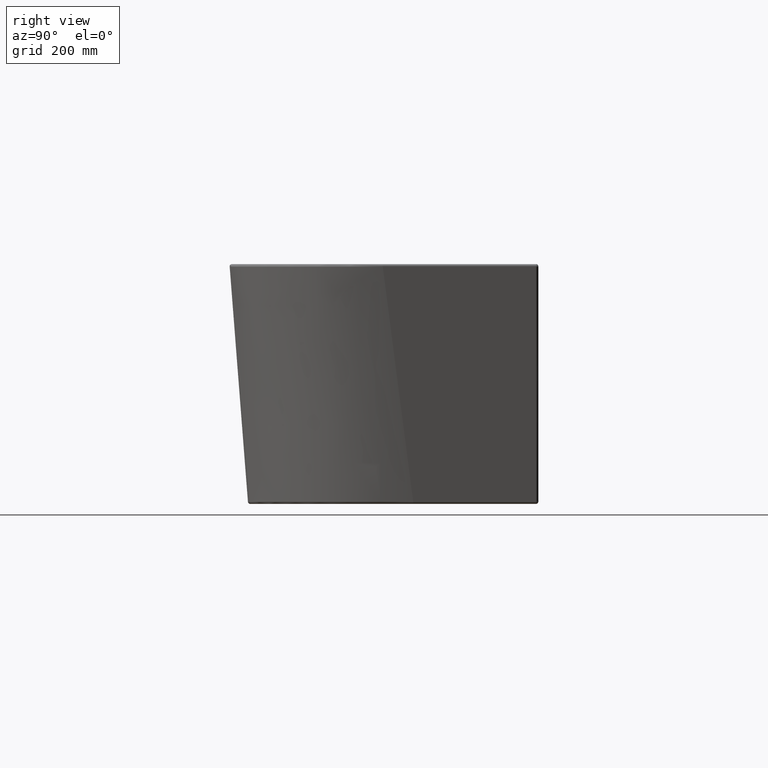
[diagram: clean part render]
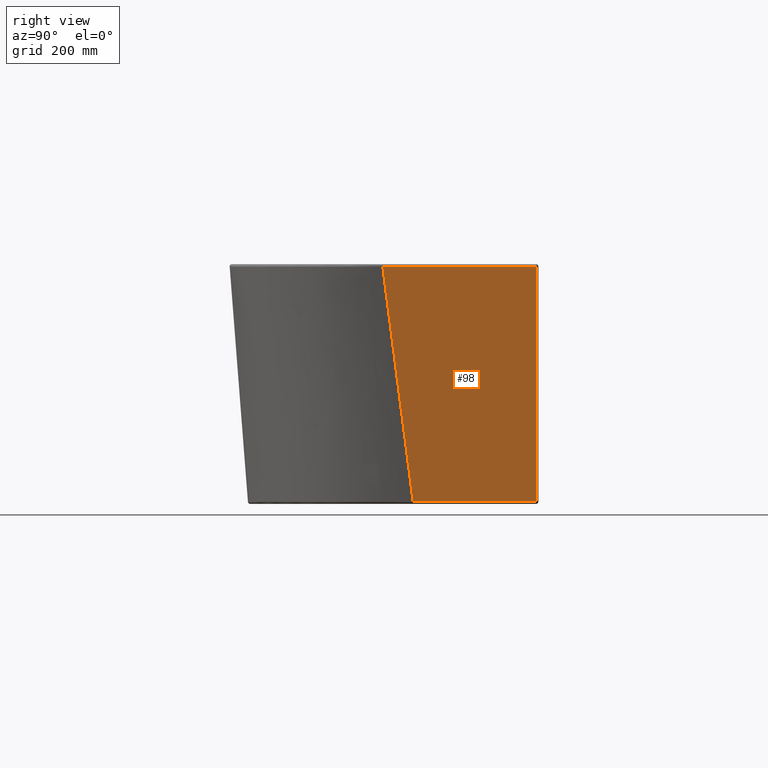
[diagram: same view with one face highlighted and labeled with its STEP entity id]
A machine part, right view. The second image highlights one B-rep face of the part: STEP entity #98.
In plain terms, the highlighted face is a freeform B-spline surface patch.
Its self-contained STEP definition (entity closure, byte-faithful):
#98=ADVANCED_FACE('',(#197),#2809,.T.);
#197=FACE_OUTER_BOUND('',#293,.T.);
#293=EDGE_LOOP('',(#490,#491,#492,#493));
#490=ORIENTED_EDGE('',*,*,#2388,.T.);
#491=ORIENTED_EDGE('',*,*,#2389,.T.);
#492=ORIENTED_EDGE('',*,*,#2390,.T.);
#493=ORIENTED_EDGE('',*,*,#2391,.T.);
#947=B_SPLINE_CURVE_WITH_KNOTS('',3,(#6392,#6393,#6394,#6395),
 .UNSPECIFIED.,.F.,.F.,(4,4),(5.65685424888513,376.22244191174),
 .UNSPECIFIED.);
#948=B_SPLINE_CURVE_WITH_KNOTS('',1,(#6400,#6401),.UNSPECIFIED.,.F.,.F.,
(2,2),(6.15764951056476,588.537685480666),.UNSPECIFIED.);
#949=B_SPLINE_CURVE_WITH_KNOTS('',3,(#6404,#6405,#6406,#6407),
 .UNSPECIFIED.,.F.,.F.,(4,4),(-302.682318105757,-5.65685424856235),
 .UNSPECIFIED.);
#950=B_SPLINE_CURVE_WITH_KNOTS('',3,(#6410,#6411,#6412,#6413),
 .UNSPECIFIED.,.F.,.F.,(4,4),(5.32170020143917,578.893599278641),
 .UNSPECIFIED.);
#1142=B_SPLINE_CURVE_WITH_KNOTS('',1,(#8822,#8823),.UNSPECIFIED.,.F.,.F.,
(2,2),(6.15764951056476,588.537685480666),.UNSPECIFIED.);
#1164=B_SPLINE_CURVE_WITH_KNOTS('',1,(#8962,#8963),.UNSPECIFIED.,.F.,.F.,
(2,2),(5.65685424888513,376.22244191174),.UNSPECIFIED.);
#1186=B_SPLINE_CURVE_WITH_KNOTS('',1,(#9057,#9058),.UNSPECIFIED.,.F.,.F.,
(2,2),(-302.682318105757,-5.65685424856235),.UNSPECIFIED.);
#1202=B_SPLINE_CURVE_WITH_KNOTS('',1,(#9119,#9120),.UNSPECIFIED.,.F.,.F.,
(2,2),(5.32170020143917,578.893599278641),.UNSPECIFIED.);
#1399=PCURVE('',#2809,#1818);
#1400=PCURVE('',#2809,#1819);
#1401=PCURVE('',#2809,#1820);
#1402=PCURVE('',#2809,#1821);
#1570=PCURVE('',#2842,#1989);
#1592=PCURVE('',#2847,#2011);
#1610=PCURVE('',#2852,#2029);
#1624=PCURVE('',#2855,#2043);
#1818=DEFINITIONAL_REPRESENTATION('',(#947),#9406);
#1819=DEFINITIONAL_REPRESENTATION('',(#948),#9406);
#1820=DEFINITIONAL_REPRESENTATION('',(#949),#9406);
#1821=DEFINITIONAL_REPRESENTATION('',(#950),#9406);
#1989=DEFINITIONAL_REPRESENTATION('',(#1142),#9406);
#2011=DEFINITIONAL_REPRESENTATION('',(#1164),#9406);
#2029=DEFINITIONAL_REPRESENTATION('',(#1186),#9406);
#2043=DEFINITIONAL_REPRESENTATION('',(#1202),#9406);
#2177=SURFACE_CURVE('',#2567,(#1399,#1592),.PCURVE_S1.);
#2178=SURFACE_CURVE('',#2568,(#1400,#1570),.PCURVE_S1.);
#2179=SURFACE_CURVE('',#2569,(#1401,#1610),.PCURVE_S1.);
#2180=SURFACE_CURVE('',#2570,(#1402,#1624),.PCURVE_S1.);
#2388=EDGE_CURVE('',#2778,#2777,#2177,.T.);
#2389=EDGE_CURVE('',#2777,#2774,#2178,.T.);
#2390=EDGE_CURVE('',#2774,#2779,#2179,.T.);
#2391=EDGE_CURVE('',#2779,#2778,#2180,.T.);
#2567=(
BOUNDED_CURVE()
B_SPLINE_CURVE(1,(#6390,#6391),.UNSPECIFIED.,.F.,.F.)
B_SPLINE_CURVE_WITH_KNOTS((2,2),(5.65685424888513,376.22244191174),
 .UNSPECIFIED.)
CURVE()
GEOMETRIC_REPRESENTATION_ITEM()
RATIONAL_B_SPLINE_CURVE((1.,1.))
REPRESENTATION_ITEM('')
);
#2568=(
BOUNDED_CURVE()
B_SPLINE_CURVE(3,(#6396,#6397,#6398,#6399),.UNSPECIFIED.,.F.,.F.)
B_SPLINE_CURVE_WITH_KNOTS((4,4),(6.15764951056476,588.537685480666),
 .UNSPECIFIED.)
CURVE()
GEOMETRIC_REPRESENTATION_ITEM()
RATIONAL_B_SPLINE_CURVE((1.,1.,1.,1.))
REPRESENTATION_ITEM('')
);
#2569=(
BOUNDED_CURVE()
B_SPLINE_CURVE(1,(#6402,#6403),.UNSPECIFIED.,.F.,.F.)
B_SPLINE_CURVE_WITH_KNOTS((2,2),(-302.682318105757,-5.65685424856235),
 .UNSPECIFIED.)
CURVE()
GEOMETRIC_REPRESENTATION_ITEM()
RATIONAL_B_SPLINE_CURVE((1.,1.))
REPRESENTATION_ITEM('')
);
#2570=(
BOUNDED_CURVE()
B_SPLINE_CURVE(1,(#6408,#6409),.UNSPECIFIED.,.F.,.F.)
B_SPLINE_CURVE_WITH_KNOTS((2,2),(5.32170020143917,578.893599278641),
 .UNSPECIFIED.)
CURVE()
GEOMETRIC_REPRESENTATION_ITEM()
RATIONAL_B_SPLINE_CURVE((1.,1.))
REPRESENTATION_ITEM('')
);
#2774=VERTEX_POINT('',#6286);
#2777=VERTEX_POINT('',#6289);
#2778=VERTEX_POINT('',#6290);
#2779=VERTEX_POINT('',#6291);
#2809=(
BOUNDED_SURFACE()
B_SPLINE_SURFACE(3,2,((#3878,#3879,#3880),(#3881,#3882,#3883),(#3884,#3885,
#3886),(#3887,#3888,#3889)),.UNSPECIFIED.,.F.,.F.,.F.)
B_SPLINE_SURFACE_WITH_KNOTS((4,4),(3,3),(0.,593.941109113743),(0.,377.),
 .UNSPECIFIED.)
GEOMETRIC_REPRESENTATION_ITEM()
RATIONAL_B_SPLINE_SURFACE(((1.,1.,1.),(1.,1.,1.),(1.,1.,1.),(1.,1.,1.)))
REPRESENTATION_ITEM('')
SURFACE()
);
#2842=(
BOUNDED_SURFACE()
B_SPLINE_SURFACE(3,2,((#5142,#5143,#5144),(#5145,#5146,#5147),(#5148,#5149,
#5150),(#5151,#5152,#5153)),.UNSPECIFIED.,.F.,.F.,.F.)
B_SPLINE_SURFACE_WITH_KNOTS((4,4),(3,3),(0.,593.941109113743),(3746.00915287992,
4327.20851813218),.UNSPECIFIED.)
GEOMETRIC_REPRESENTATION_ITEM()
RATIONAL_B_SPLINE_SURFACE(((1.,0.707106781186547,1.),(0.981357775966269,
0.717543593945994,1.),(0.962715551932538,0.727980406705441,1.),(0.944073327898807,
0.738417219464888,1.)))
REPRESENTATION_ITEM('')
SURFACE()
);
#2847=(
BOUNDED_SURFACE()
B_SPLINE_SURFACE(1,2,((#5202,#5203,#5204),(#5205,#5206,#5207)),
 .UNSPECIFIED.,.F.,.F.,.F.)
B_SPLINE_SURFACE_WITH_KNOTS((2,2),(3,3),(-160.000000000002,376.22244191174),
(0.,9.05268294168685),.UNSPECIFIED.)
GEOMETRIC_REPRESENTATION_ITEM()
RATIONAL_B_SPLINE_SURFACE(((1.,0.659574168863054,1.),(1.,0.659574168863064,
1.)))
REPRESENTATION_ITEM('')
SURFACE()
);
#2852=(
BOUNDED_SURFACE()
B_SPLINE_SURFACE(1,2,((#5232,#5233,#5234),(#5235,#5236,#5237)),
 .UNSPECIFIED.,.F.,.F.,.F.)
B_SPLINE_SURFACE_WITH_KNOTS((2,2),(3,3),(-160.000000000002,302.682318105757),
(0.,8.73596471937333),.UNSPECIFIED.)
GEOMETRIC_REPRESENTATION_ITEM()
RATIONAL_B_SPLINE_SURFACE(((1.,0.751639485237847,1.),(1.,0.751639485237847,
1.)))
REPRESENTATION_ITEM('')
SURFACE()
);
#2855=(
BOUNDED_SURFACE()
B_SPLINE_SURFACE(1,2,((#5277,#5278,#5279),(#5280,#5281,#5282)),
 .UNSPECIFIED.,.F.,.F.,.F.)
B_SPLINE_SURFACE_WITH_KNOTS((2,2),(3,3),(-160.000000000005,744.958118158898),
(0.,8.88576587842743),.UNSPECIFIED.)
GEOMETRIC_REPRESENTATION_ITEM()
RATIONAL_B_SPLINE_SURFACE(((1.,0.70710678105643,1.),(1.,0.707106781120093,
1.)))
REPRESENTATION_ITEM('')
SURFACE()
);
#3878=CARTESIAN_POINT('',(722.6080292697,-1148.07099180049,0.));
#3879=CARTESIAN_POINT('',(722.6080292697,-959.570991800494,0.));
#3880=CARTESIAN_POINT('',(722.6080292697,-771.070991800494,0.));
#3881=CARTESIAN_POINT('',(697.274695936366,-1123.07099180049,-193.333333333333));
#3882=CARTESIAN_POINT('',(697.274695936366,-947.070991800494,-193.333333333333));
#3883=CARTESIAN_POINT('',(697.274695936367,-771.070991800494,-193.333333333333));
#3884=CARTESIAN_POINT('',(671.941362603033,-1098.07099180049,-386.666666666667));
#3885=CARTESIAN_POINT('',(671.941362603033,-934.570991800494,-386.666666666667));
#3886=CARTESIAN_POINT('',(671.941362603033,-771.070991800494,-386.666666666667));
#3887=CARTESIAN_POINT('',(646.6080292697,-1073.07099180049,-580.));
#3888=CARTESIAN_POINT('',(646.6080292697,-922.070991800494,-580.));
#3889=CARTESIAN_POINT('',(646.6080292697,-771.070991800494,-580.));
#5142=CARTESIAN_POINT('',(352.6080292697,-1518.07099180049,0.));
#5143=CARTESIAN_POINT('',(722.6080292697,-1518.07099180049,0.));
#5144=CARTESIAN_POINT('',(722.6080292697,-1148.07099180049,0.));
#5145=CARTESIAN_POINT('',(338.514252622973,-1502.08824162991,-185.988074750878));
#5146=CARTESIAN_POINT('',(696.537739300412,-1482.77047267638,-198.957476081409));
#5147=CARTESIAN_POINT('',(697.274695936366,-1123.07099180049,-193.333333333333));
#5148=CARTESIAN_POINT('',(323.874646335909,-1485.48650486716,-379.179172970417));
#5149=CARTESIAN_POINT('',(671.214971469049,-1448.48213713583,-392.210177952338));
#5150=CARTESIAN_POINT('',(671.941362603033,-1098.07099180049,-386.666666666667));
#5151=CARTESIAN_POINT('',(308.656875594656,-1468.22911289854,-580.));
#5152=CARTESIAN_POINT('',(646.6080292697,-1415.16306647274,-580.));
#5153=CARTESIAN_POINT('',(646.6080292697,-1073.07099180049,-580.));
#5202=CARTESIAN_POINT('',(716.543510389443,-611.070991800491,0.));
#5203=CARTESIAN_POINT('',(722.6080292697,-611.070991800491,1.03351066384982E-13));
#5204=CARTESIAN_POINT('',(721.820103740347,-611.070991800492,-6.01311588190276));
#5205=CARTESIAN_POINT('',(716.543510389443,-1147.29343371223,0.));
#5206=CARTESIAN_POINT('',(722.6080292697,-1147.29343371224,-8.63147441299266E-14));
#5207=CARTESIAN_POINT('',(721.820103740347,-1147.29343371223,-6.01311588190275));
#5232=CARTESIAN_POINT('',(647.299444950164,-611.070991800492,-574.723406649096));
#5233=CARTESIAN_POINT('',(646.6080292697,-611.070991800492,-580.));
#5234=CARTESIAN_POINT('',(641.286329068261,-611.070991800492,-580.));
#5235=CARTESIAN_POINT('',(647.299444950163,-1073.75330990625,-574.723406649095));
#5236=CARTESIAN_POINT('',(646.6080292697,-1073.75330990625,-580.));
#5237=CARTESIAN_POINT('',(641.286329068261,-1073.75330990625,-580.));
#5277=CARTESIAN_POINT('',(620.211309596984,-771.070991800494,-737.908876224656));
#5278=CARTESIAN_POINT('',(625.82021622323,-771.070991798932,-738.643836403267));
#5279=CARTESIAN_POINT('',(625.820216223746,-776.727846048963,-738.643836403335));
#5280=CARTESIAN_POINT('',(737.786935689396,-771.070991800494,159.378796581943));
#5281=CARTESIAN_POINT('',(743.395842315389,-771.070991799696,158.643836403364));
#5282=CARTESIAN_POINT('',(743.395842315654,-776.727846049472,158.64383640333));
#6286=CARTESIAN_POINT('',(647.299444950164,-1073.75330990623,-574.723406649088));
#6289=CARTESIAN_POINT('',(721.820103740347,-1147.29343371229,-6.01311588190365));
#6290=CARTESIAN_POINT('',(721.820103740331,-776.727853397664,-6.01311588202376));
#6291=CARTESIAN_POINT('',(647.299444950175,-776.727852224968,-574.723406649005));
#6390=CARTESIAN_POINT('',(721.820103740331,-776.727853397664,-6.01311588202376));
#6391=CARTESIAN_POINT('',(721.820103740347,-1147.29343371229,-6.01311588190365));
#6392=CARTESIAN_POINT('',(6.15764951122437,371.331424988502));
#6393=CARTESIAN_POINT('',(6.1576495111923,247.554313266717));
#6394=CARTESIAN_POINT('',(6.15764951118061,123.777200233928));
#6395=CARTESIAN_POINT('',(6.15764951056344,0.));
#6396=CARTESIAN_POINT('',(721.820103740347,-1147.29343371229,-6.01311588190365));
#6397=CARTESIAN_POINT('',(696.979884143619,-1122.78005911027,-195.583212804298));
#6398=CARTESIAN_POINT('',(672.139664546892,-1098.26668450825,-385.153309726693));
#6399=CARTESIAN_POINT('',(647.299444950164,-1073.75330990623,-574.723406649088));
#6400=CARTESIAN_POINT('',(6.15764951056344,0.));
#6401=CARTESIAN_POINT('',(588.537685480669,0.));
#6402=CARTESIAN_POINT('',(647.299444950164,-1073.75330990623,-574.723406649088));
#6403=CARTESIAN_POINT('',(647.299444950175,-776.727852224968,-574.723406649005));
#6404=CARTESIAN_POINT('',(588.537685480669,0.));
#6405=CARTESIAN_POINT('',(588.537685479917,123.318148333673));
#6406=CARTESIAN_POINT('',(588.537685480311,246.636167466624));
#6407=CARTESIAN_POINT('',(588.537685480184,369.954185833381));
#6408=CARTESIAN_POINT('',(647.299444950175,-776.727852224968,-574.723406649005));
#6409=CARTESIAN_POINT('',(721.820103740331,-776.727853397664,-6.01311588202376));
#6410=CARTESIAN_POINT('',(588.537685480184,369.954185833381));
#6411=CARTESIAN_POINT('',(394.411333902158,370.523758779496));
#6412=CARTESIAN_POINT('',(200.284615760156,370.961206081485));
#6413=CARTESIAN_POINT('',(6.15764951122437,371.331424988502));
#8822=CARTESIAN_POINT('',(6.15764951056468,4327.20851813218));
#8823=CARTESIAN_POINT('',(588.537685480666,4327.20851813218));
#8962=CARTESIAN_POINT('',(5.65685424888511,9.05268294168685));
#8963=CARTESIAN_POINT('',(376.22244191174,9.05268294168685));
#9057=CARTESIAN_POINT('',(302.682318105757,0.));
#9058=CARTESIAN_POINT('',(5.65685424856235,0.));
#9119=CARTESIAN_POINT('',(5.32170020143919,8.88576587842743));
#9120=CARTESIAN_POINT('',(578.893599278641,8.88576587842743));
#9406=(
GEOMETRIC_REPRESENTATION_CONTEXT(2)
PARAMETRIC_REPRESENTATION_CONTEXT()
REPRESENTATION_CONTEXT('pspace','')
);